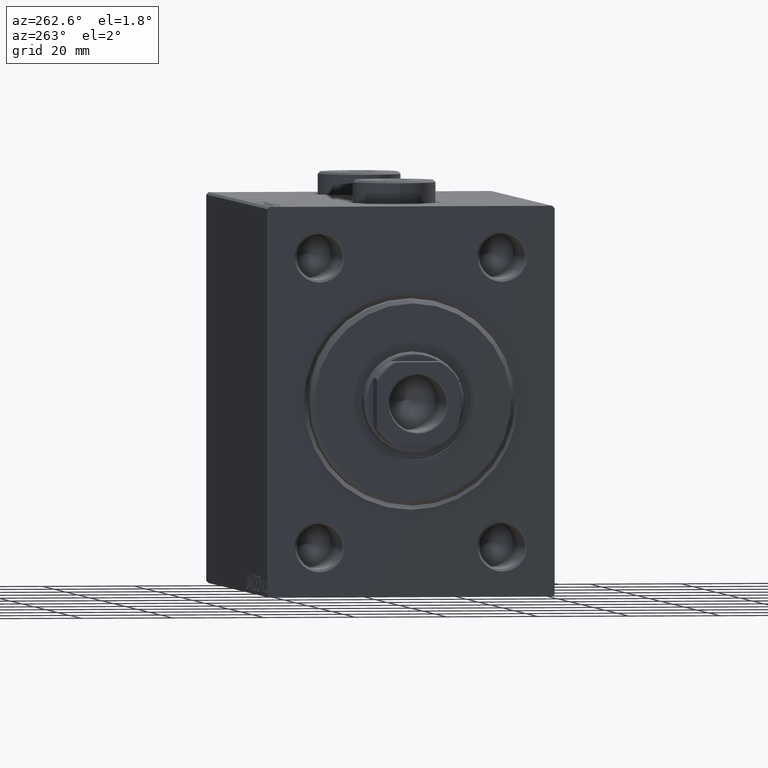
[diagram: clean part render]
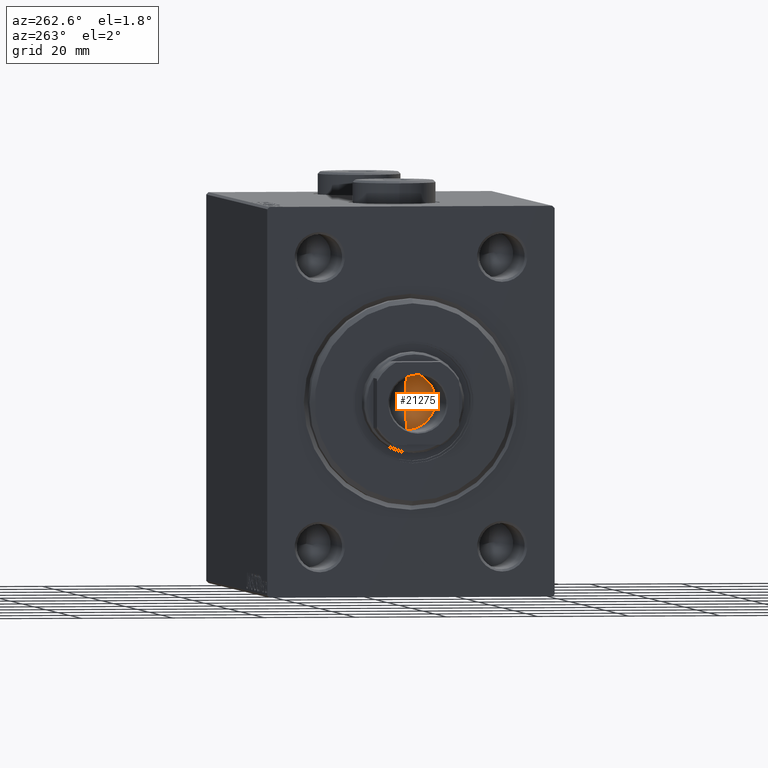
[diagram: same view with one face highlighted and labeled with its STEP entity id]
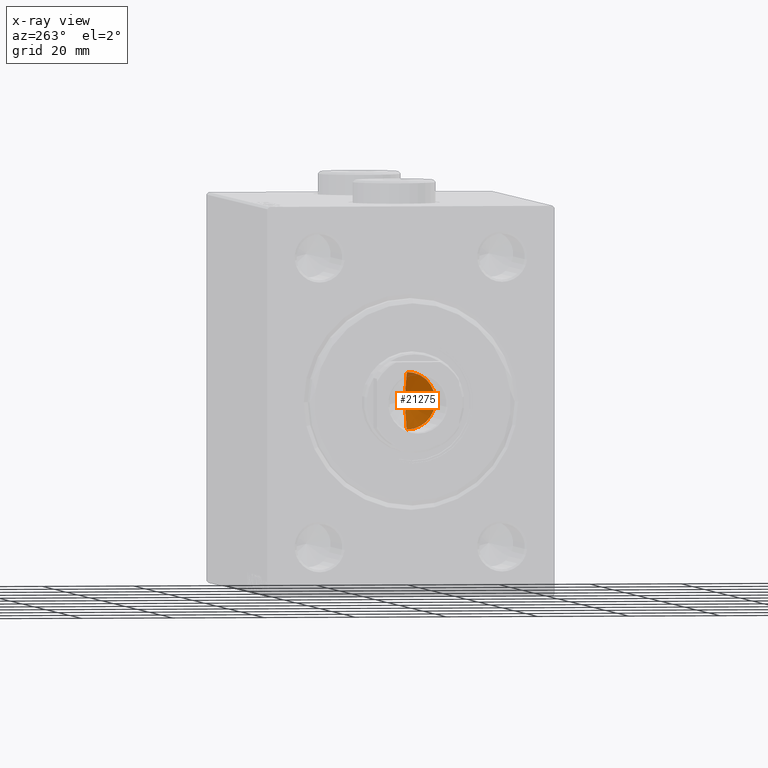
[diagram: x-ray of the same camera — body ghosted, the highlighted face saturated]
A machine part, auxiliary view. The second image highlights one B-rep face of the part: STEP entity #21275.
The next image is the same camera in x-ray: the body ghosted, the highlighted face saturated — about 2% of this face is hidden behind the body in this view.
In plain terms, the highlighted conical surface has half-angle 59 deg.
Its self-contained STEP definition (entity closure, byte-faithful):
#2218 = DIRECTION ( 'NONE',  ( -0.000000000000000000, -0.000000000000000000, 1.000000000000000000 ) ) ;
#2373 = VERTEX_POINT ( 'NONE', #19392 ) ;
#5013 = DIRECTION ( 'NONE',  ( 1.000000000000000000, 0.000000000000000000, 0.000000000000000000 ) ) ;
#6223 = AXIS2_PLACEMENT_3D ( 'NONE', #19306, #2218, #5013 ) ;
#11566 = FACE_OUTER_BOUND ( 'NONE', #45210, .T. ) ;
#11687 = VERTEX_POINT ( 'NONE', #32420 ) ;
#15242 = CARTESIAN_POINT ( 'NONE',  ( 0.000000000000000000, 0.000000000000000000, 84.00000000000000000 ) ) ;
#19306 = CARTESIAN_POINT ( 'NONE',  ( 0.000000000000000000, 0.000000000000000000, 84.00000000000000000 ) ) ;
#19392 = CARTESIAN_POINT ( 'NONE',  ( 6.249999999999995559, 0.000000000000000000, 84.00000000000000000 ) ) ;
#20241 = AXIS2_PLACEMENT_3D ( 'NONE', #15242, #40125, #22828 ) ;
#20509 = EDGE_CURVE ( 'NONE', #11687, #2373, #35696, .T. ) ;
#21275 = ADVANCED_FACE ( 'NONE', ( #11566 ), #22478, .F. ) ;
#22229 = CARTESIAN_POINT ( 'NONE',  ( 6.249999999999995559, 0.000000000000000000, 84.00000000000000000 ) ) ;
#22478 = CONICAL_SURFACE ( 'NONE', #20241, 6.249999999999995559, 1.029744258676653201 ) ;
#22828 = DIRECTION ( 'NONE',  ( 1.000000000000000000, 0.000000000000000000, 0.000000000000000000 ) ) ;
#27628 = ORIENTED_EDGE ( 'NONE', *, *, #43897, .T. ) ;
#30468 = ORIENTED_EDGE ( 'NONE', *, *, #20509, .T. ) ;
#31009 = DIRECTION ( 'NONE',  ( -0.8571673007021116675, 1.049727191138617833E-16, 0.5150380749100552658 ) ) ;
#31079 = VECTOR ( 'NONE', #36287, 1000.000000000000000 ) ;
#32420 = CARTESIAN_POINT ( 'NONE',  ( -6.249999999999995559, 7.654042494670950704E-16, 84.00000000000000000 ) ) ;
#34239 = CARTESIAN_POINT ( 'NONE',  ( -6.249999999999995559, 7.654042494670950704E-16, 84.00000000000000000 ) ) ;
#35696 = CIRCLE ( 'NONE', #6223, 6.249999999999995559 ) ;
#36249 = ORIENTED_EDGE ( 'NONE', *, *, #42433, .F. ) ;
#36287 = DIRECTION ( 'NONE',  ( 0.8571673007021116675, 0.000000000000000000, 0.5150380749100552658 ) ) ;
#38617 = LINE ( 'NONE', #34239, #45063 ) ;
#39740 = LINE ( 'NONE', #22229, #31079 ) ;
#40125 = DIRECTION ( 'NONE',  ( -0.000000000000000000, -0.000000000000000000, 1.000000000000000000 ) ) ;
#41673 = VERTEX_POINT ( 'NONE', #43753 ) ;
#42433 = EDGE_CURVE ( 'NONE', #41673, #2373, #39740, .T. ) ;
#43753 = CARTESIAN_POINT ( 'NONE',  ( -5.058292539270947311E-15, 0.000000000000000000, 80.24462113107774996 ) ) ;
#43897 = EDGE_CURVE ( 'NONE', #41673, #11687, #38617, .T. ) ;
#45063 = VECTOR ( 'NONE', #31009, 1000.000000000000000 ) ;
#45210 = EDGE_LOOP ( 'NONE', ( #36249, #27628, #30468 ) ) ;